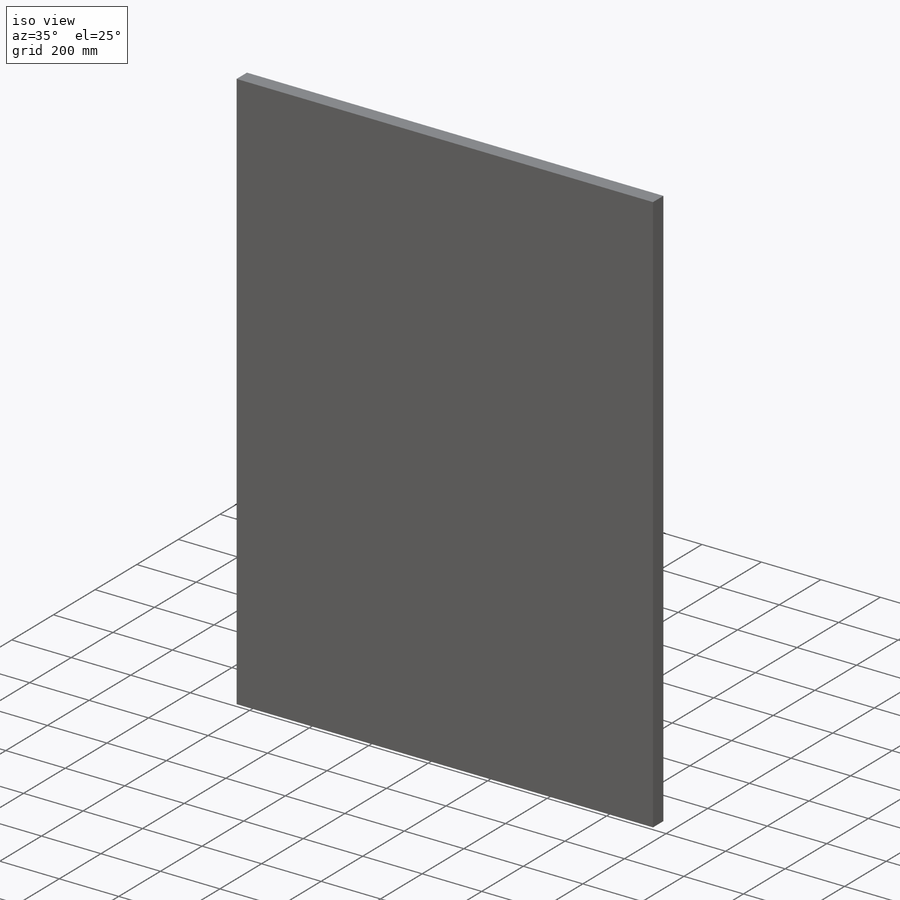
[diagram: iso view]
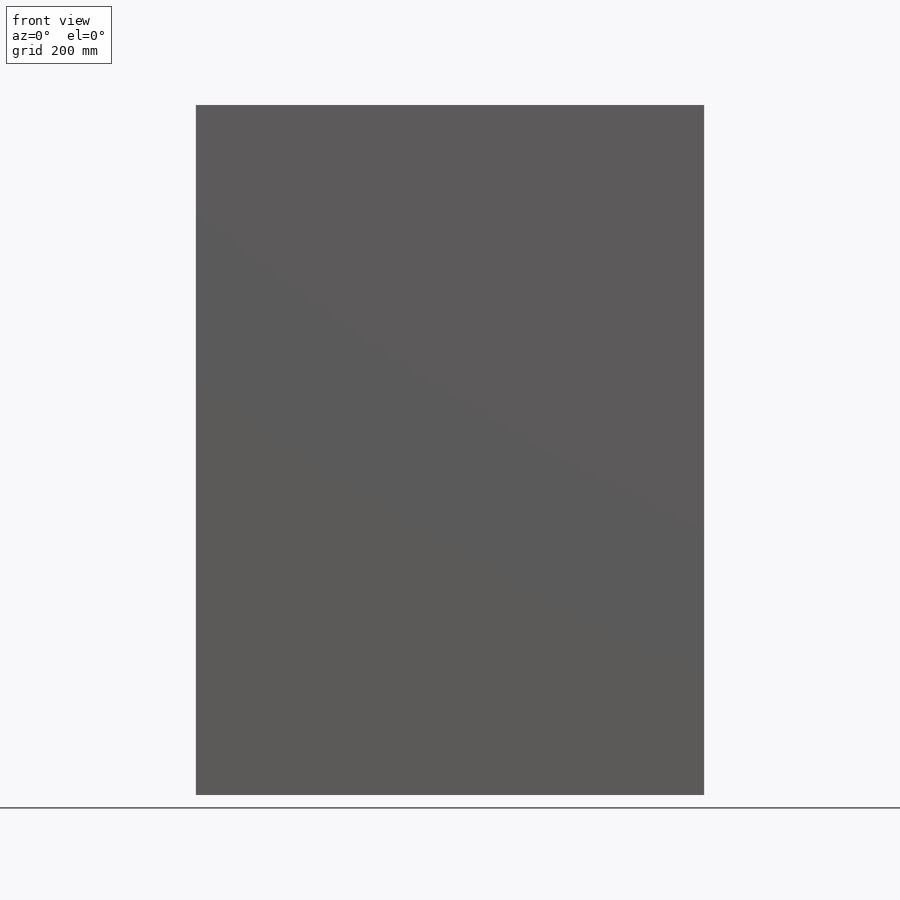
[diagram: front view]
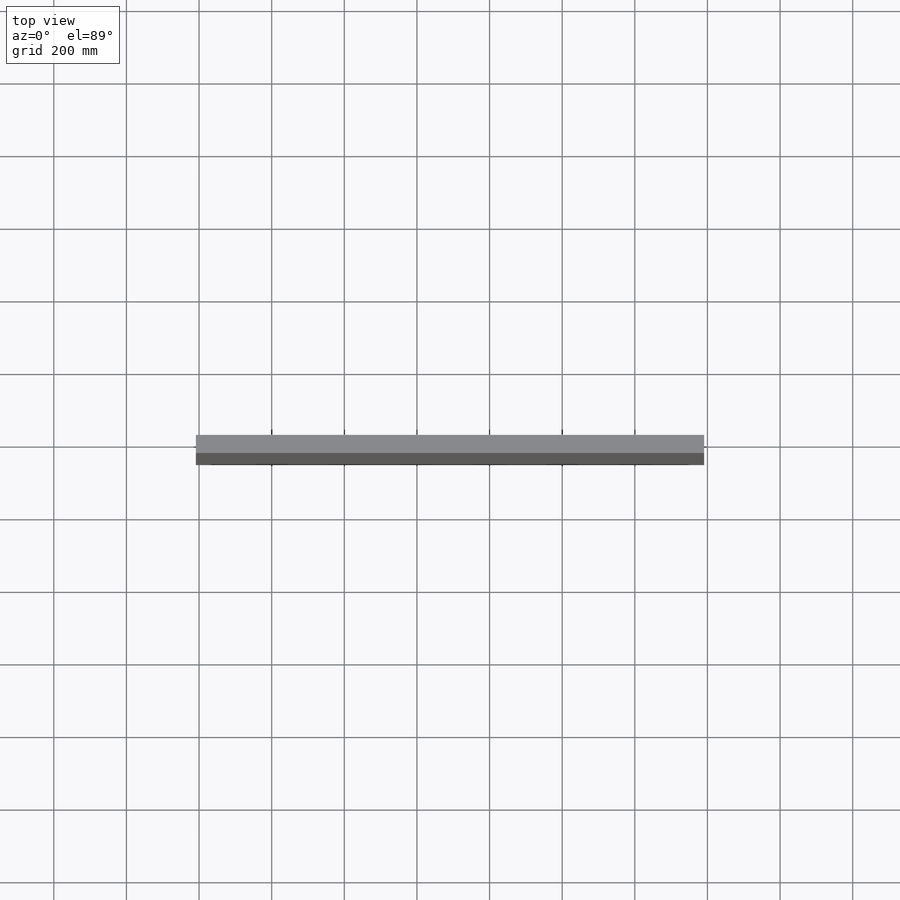
[diagram: top view]
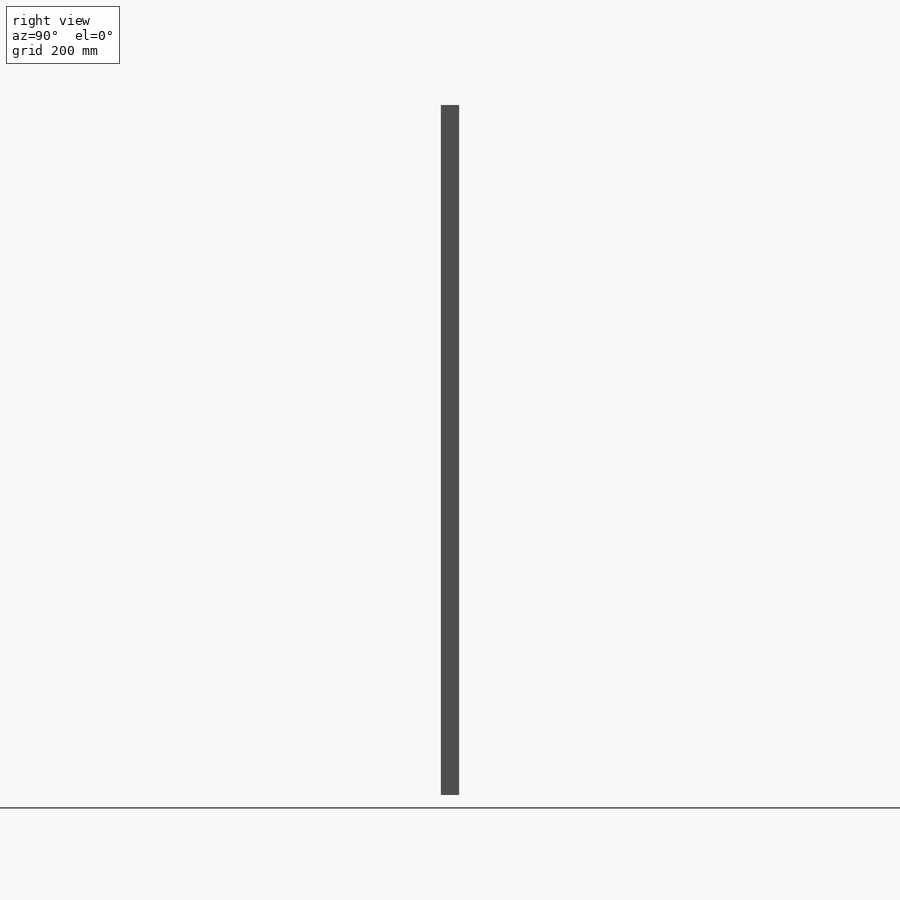
[diagram: right view]
SOLIDWORKS PART (.sldprt)
format: sldprt  version: not decoded by parser v0  size: 275,456 bytes
history: native  units: mm
features: sketch x10, extrude x9, material x1, cut_extrude x1 (+12 scaffold rows collapsed)
feature tree (33):
  scaffold x12  (default folders/planes/origin — collapsed)
  material  "Material <not specified>"
  sketch  "Sketch1"  dims[D1=1400.0mm D2=1900.0mm D3=206.0mm D4=206.6mm]
  extrude  "Boss-Extrude1"  Depth=50mm
  sketch  "Sketch2"  dims[c1.D1=500.0mm c1.D2=500.0mm c1.D3=500.0mm c1.D4=500.0mm c1.D5=250.0mm c1.D6=250.0mm c1.D7=250.0mm c1.D8=250.0mm c1.D9=250.0mm c1.D10=250.0mm c1.D11=250.0mm c1.D12=250.0mm c2.D5=558.0mm c2.D6=558.0mm c2.D7=153.0mm c2.D8=153.0mm c2.D9=153.0mm c2.D10=153.0mm c2.D11=1187.0mm]
  extrude  "Boss-Extrude2"  Depth=2728mm
  sketch  "Sketch3"  dims[D1=150.0mm D2=100.0mm D3=850.0mm D4=1850.0mm]
  extrude  "Boss-Extrude3"  [1 undecoded]
  sketch  "Sketch4"  dims[D1=150.0mm D2=100.0mm D3=525.0mm]
  extrude  "Boss-Extrude4"  [1 undecoded]
  sketch  "Sketch6"  dims[c1.D1=300.0mm c1.D2=60.0mm c1.D3=57.0mm c1.D4=600.0mm c1.D5=600.0mm c2.D3=~1826.953906mm]
  extrude  "Boss-Extrude6"  Depth=1063mm
  sketch  "Sketch7"  dims[c1.D1=577.0mm c1.D2=600.0mm c1.D3=600.0mm c1.D4=577.0mm c1.D5=600.0mm c1.D6=577.0mm c1.D7=577.0mm c1.D8=623.02mm c2.D7=311.51mm]
  cut_extrude  "Cut-Extrude5"  Depth=2868mm
  sketch  "Sketch8"  dims[D1=150.0mm D2=100.0mm D3=850.0mm]
  extrude  "Boss-Extrude7"  [1 undecoded]
  sketch  "Sketch9"  dims[D1=150.0mm D2=100.0mm D3=525.0mm]
  extrude  "Boss-Extrude8"  [1 undecoded]
  extrude  "Boss-Extrude10"  [1 undecoded]
  sketch  "Sketch6<3>"
  sketch  "Sketch10"  dims[D1=1000.0mm D2=25.0mm]
  extrude  "Boss-Extrude11"  [1 undecoded]
decode coverage: 13 of 20 modeling features carry decoded parameters
note: ~ marks probable driven/reference dimensions
note: 6 parameter values undecoded
summary: no parameter record found for 6 features
note: suppression state not decoded; provenance and decode notes live in map.json
